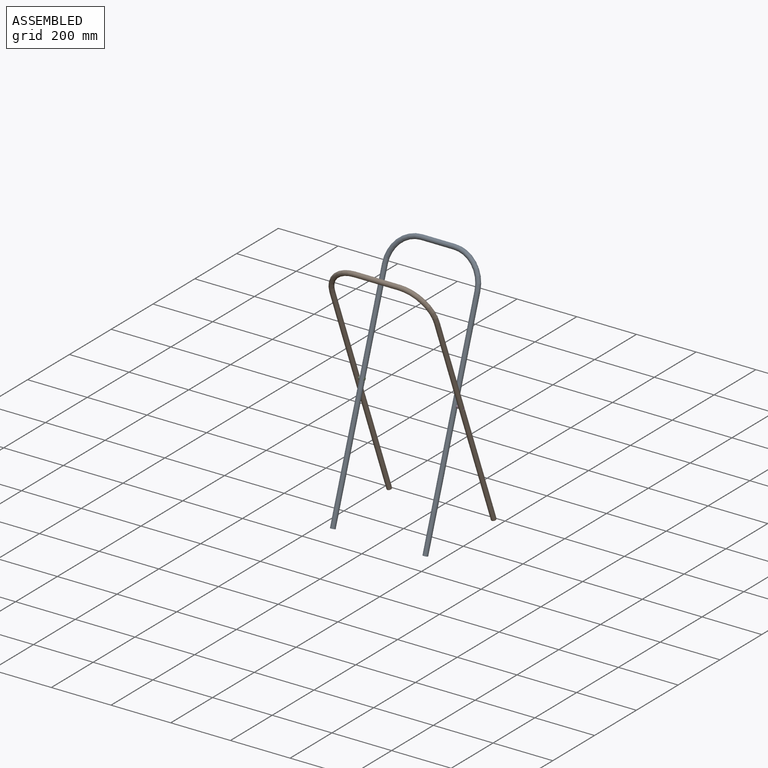
[diagram: assembled view]
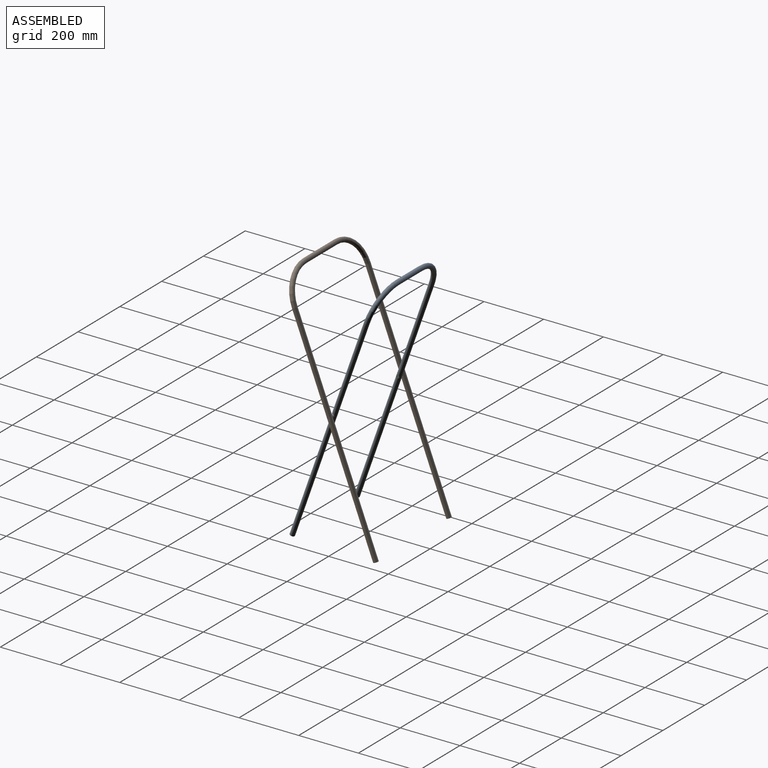
[diagram: assembled view, second angle]
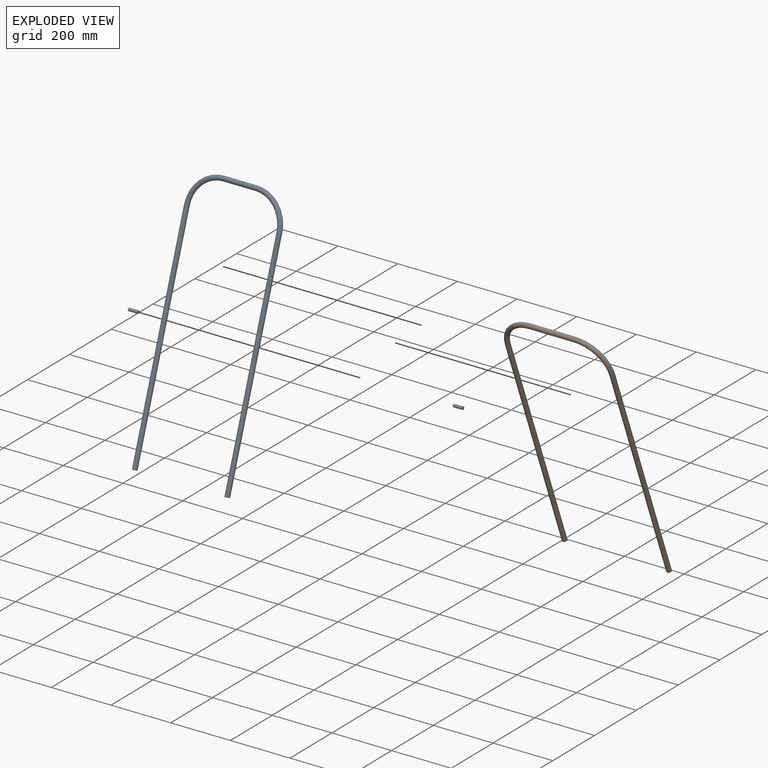
[diagram: exploded view]
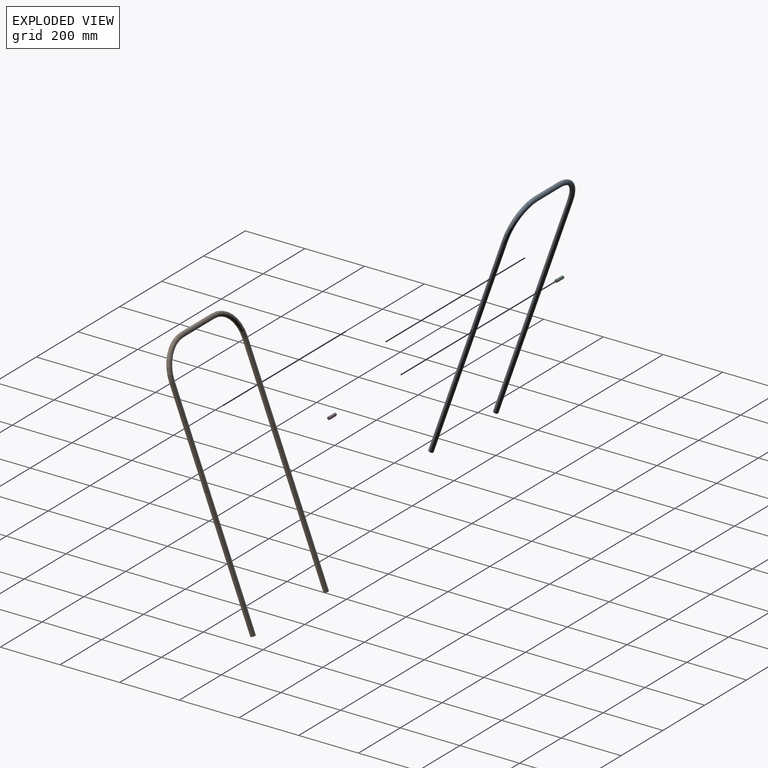
[diagram: exploded view, second angle]
ASSEMBLY  parts=4 mates=3
PART A: 16 faces, bbox 16x343.8x866.9 mm
  f0: cylinder r=8mm len=750mm, axis (0,0,1), area 37533.1mm2, adj f4,f6,f14,f15
  f1: cylinder r=6.5mm len=750mm, axis (0,0,1), area 30457.8mm2, adj f4,f9,f14,f15
  f2: cylinder r=8mm len=750mm, axis (0,0,-1), area 37533.1mm2, adj f5,f8,f12,f13
  f3: cylinder r=6.5mm len=750mm, axis (0,0,-1), area 30458mm2, adj f5,f11,f12,f13
  f4: plane 16x16mm, normal (0,0,-1), area 68.3mm2, adj f0,f1
  f5: plane 16x16mm, normal (0,0,-1), area 68.3mm2, adj f2,f3
  f6: torus R=100mm, axis (1,0,0), area 7895.7mm2, adj f0,f7
  f7: cylinder r=8mm len=110mm, axis (0,-1,0), area 5529.2mm2, adj f6,f8
  f8: torus R=100mm, axis (1,0,0), area 7895.7mm2, adj f2,f7
  f9: torus R=100mm, axis (1,0,0), area 6415.2mm2, adj f1,f10
  f10: cylinder r=6.5mm len=110mm, axis (0,-1,0), area 4492.5mm2, adj f9,f11
  f11: torus R=100mm, axis (1,0,0), area 6415.2mm2, adj f3,f10
  f12: cylinder r=5mm len=10mm, axis (0,1,0), area 55.2mm2, adj f2,f3
  f13: cylinder r=5mm len=10mm, axis (0,1,0), area 55.2mm2, adj f2,f3
  f14: cylinder r=5mm len=10mm, axis (0,1,0), area 55.2mm2, adj f0,f1
  f15: cylinder r=5mm len=10mm, axis (0,-1,0), area 55.2mm2, adj f0,f1
PART B: 16 faces, bbox 16x383.8x866.9 mm
  f0: cylinder r=8mm len=750mm, axis (0,0,1), area 37533.1mm2, adj f4,f6,f14,f15
  f1: cylinder r=6.5mm len=750mm, axis (0,0,1), area 30457.8mm2, adj f4,f9,f14,f15
  f2: cylinder r=8mm len=750mm, axis (0,0,-1), area 37533.1mm2, adj f5,f8,f12,f13
  f3: cylinder r=6.5mm len=750mm, axis (0,0,-1), area 30458mm2, adj f5,f11,f12,f13
  f4: plane 16x16mm, normal (0,0,-1), area 68.3mm2, adj f0,f1
  f5: plane 16x16mm, normal (0,0,-1), area 68.3mm2, adj f2,f3
  f6: torus R=100mm, axis (1,0,0), area 7895.7mm2, adj f0,f7
  f7: cylinder r=8mm len=150mm, axis (0,-1,0), area 7539.8mm2, adj f6,f8
  f8: torus R=100mm, axis (1,0,0), area 7895.7mm2, adj f2,f7
  f9: torus R=100mm, axis (1,0,0), area 6415.2mm2, adj f1,f10
  f10: cylinder r=6.5mm len=150mm, axis (0,-1,0), area 6126.1mm2, adj f9,f11
  f11: torus R=100mm, axis (1,0,0), area 6415.2mm2, adj f3,f10
  f12: cylinder r=5mm len=10mm, axis (0,1,0), area 55.2mm2, adj f2,f3
  f13: cylinder r=5mm len=10mm, axis (0,1,0), area 55.2mm2, adj f2,f3
  f14: cylinder r=5mm len=10mm, axis (0,1,0), area 55.2mm2, adj f0,f1
  f15: cylinder r=5mm len=10mm, axis (0,-1,0), area 55.2mm2, adj f0,f1
PART C: 3 faces, bbox 10x32x10 mm
  f0: cylinder r=5mm len=32mm, axis (0,1,0), area 1005.3mm2, adj f1,f2
  f1: plane 10x10mm, normal (0,-1,0), area 78.5mm2, adj f0
  f2: plane 10x10mm, normal (0,1,0), area 78.5mm2, adj f0
PART D: same geometry as C
PLACE A rot(axis=(-0.17,-0.17,-0.97),91.6deg) t=(-28.18,-141.35,-400.81)mm
PLACE B rot(axis=(0.18,-0.18,0.97),92deg) t=(-356.07,154.29,-396.01)mm
PLACE C rot(axis=(0.58,-0.58,0.58),120deg) t=(-362.15,0,0)mm
PLACE D rot(axis=(0.71,0.71,0),180deg) t=(0,0,0)mm
MATE revolute C.f0 <-> A.f12  axis (1,0,0) through (-330.15,0,0)mm
MATE revolute C.f0 <-> B.f12  axis (-1,0,0) through (-362.15,0,0)mm
MATE revolute D.f0 <-> B.f12  axis (1,0,0) through (0,0,0)mm
